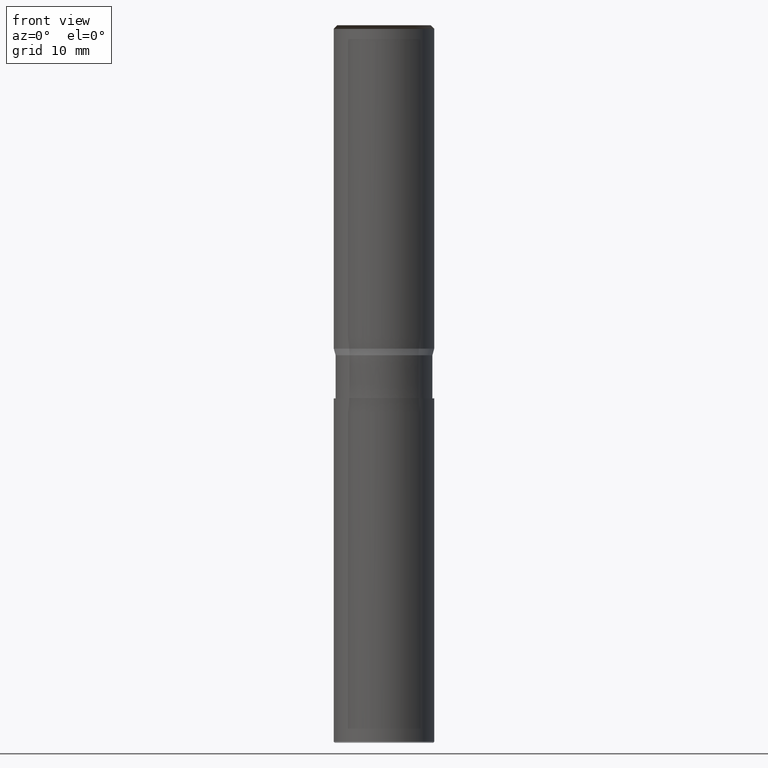
[diagram: clean part render]
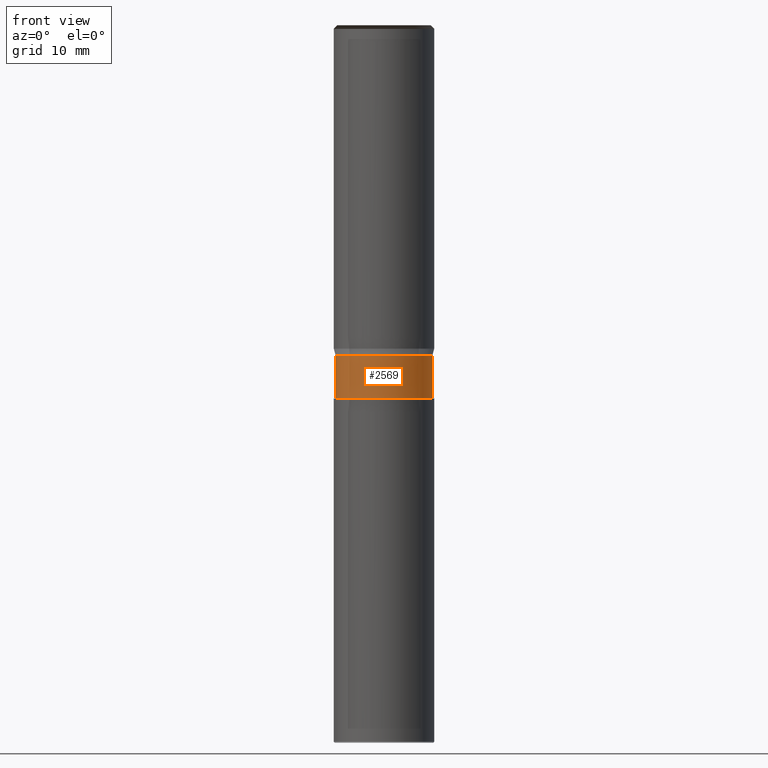
[diagram: same view with one face highlighted and labeled with its STEP entity id]
A machine part, front view. The second image highlights one B-rep face of the part: STEP entity #2569.
In plain terms, the highlighted face is a freeform B-spline surface patch.
Its self-contained STEP definition (entity closure, byte-faithful):
#2226=CARTESIAN_POINT('',(6.75,0.0,-6.93300989));
#2230=CARTESIAN_POINT('',(-6.75,0.0,-6.93300989));
#2231=CARTESIAN_POINT('',(6.75,0.0,-0.93300989));
#2235=CARTESIAN_POINT('',(-6.75,0.0,-0.93300989));
#2252=CARTESIAN_POINT('',(-6.75,-6.75,-6.93300989));
#2253=CARTESIAN_POINT('',(0.0,-6.75,-6.93300989));
#2254=CARTESIAN_POINT('',(6.75,-6.75,-6.93300989));
#2255=CARTESIAN_POINT('',(-6.75,-6.75,-0.93300989));
#2256=CARTESIAN_POINT('',(0.0,-6.75,-0.93300989));
#2257=CARTESIAN_POINT('',(6.75,-6.75,-0.93300989));
#2550=(
BOUNDED_SURFACE()
B_SPLINE_SURFACE(1,2,(
(#2230,#2252,#2253,#2254,#2226),
(#2235,#2255,#2256,#2257,#2231)
), .UNSPECIFIED.,.F.,.F.,.F.)
B_SPLINE_SURFACE_WITH_KNOTS((2,2),(3,2,3),(
0.0,1.0),(
0.0,0.5,1.0), .UNSPECIFIED.)
GEOMETRIC_REPRESENTATION_ITEM()
RATIONAL_B_SPLINE_SURFACE(((1.0,0.707106781187,1.0,0.707106781187,1.0),
(1.0,0.707106781187,1.0,0.707106781187,1.0)
))
REPRESENTATION_ITEM('')
SURFACE()
);
#2551=(
BOUNDED_CURVE()
B_SPLINE_CURVE(1,(#2235,#2230),.UNSPECIFIED.,.F.,.F.)
B_SPLINE_CURVE_WITH_KNOTS((2,2),
(0.0,1.0),.UNSPECIFIED.)
CURVE()
GEOMETRIC_REPRESENTATION_ITEM()
RATIONAL_B_SPLINE_CURVE((1.0,1.0))
REPRESENTATION_ITEM('')
);
#2552=(
BOUNDED_CURVE()
B_SPLINE_CURVE(2,(#2230,#2252,#2253,#2254,#2226),.UNSPECIFIED.,.F.,.F.)
B_SPLINE_CURVE_WITH_KNOTS((3,2,3),
(0.0,0.5,1.0),.UNSPECIFIED.)
CURVE()
GEOMETRIC_REPRESENTATION_ITEM()
RATIONAL_B_SPLINE_CURVE((1.0,0.707106781187,1.0,0.707106781187,1.0))
REPRESENTATION_ITEM('')
);
#2553=(
BOUNDED_CURVE()
B_SPLINE_CURVE(1,(#2226,#2231),.UNSPECIFIED.,.F.,.F.)
B_SPLINE_CURVE_WITH_KNOTS((2,2),
(0.0,1.0),.UNSPECIFIED.)
CURVE()
GEOMETRIC_REPRESENTATION_ITEM()
RATIONAL_B_SPLINE_CURVE((1.0,1.0))
REPRESENTATION_ITEM('')
);
#2554=(
BOUNDED_CURVE()
B_SPLINE_CURVE(2,(#2231,#2257,#2256,#2255,#2235),.UNSPECIFIED.,.F.,.F.)
B_SPLINE_CURVE_WITH_KNOTS((3,2,3),
(0.0,0.5,1.0),.UNSPECIFIED.)
CURVE()
GEOMETRIC_REPRESENTATION_ITEM()
RATIONAL_B_SPLINE_CURVE((1.0,0.707106781187,1.0,0.707106781187,1.0))
REPRESENTATION_ITEM('')
);
#2555=VERTEX_POINT('',#2226);
#2556=VERTEX_POINT('',#2230);
#2557=VERTEX_POINT('',#2231);
#2558=VERTEX_POINT('',#2235);
#2559=EDGE_CURVE('',#2558,#2556,#2551,.T.);
#2560=EDGE_CURVE('',#2556,#2555,#2552,.T.);
#2561=EDGE_CURVE('',#2555,#2557,#2553,.T.);
#2562=EDGE_CURVE('',#2557,#2558,#2554,.T.);
#2563=ORIENTED_EDGE('',*,*,#2559,.T.);
#2564=ORIENTED_EDGE('',*,*,#2560,.T.);
#2565=ORIENTED_EDGE('',*,*,#2561,.T.);
#2566=ORIENTED_EDGE('',*,*,#2562,.T.);
#2567=EDGE_LOOP('',(#2563,#2564,#2565,#2566));
#2568=FACE_OUTER_BOUND('',#2567,.T.);
#2569=ADVANCED_FACE('',(#2568),#2550,.T.);